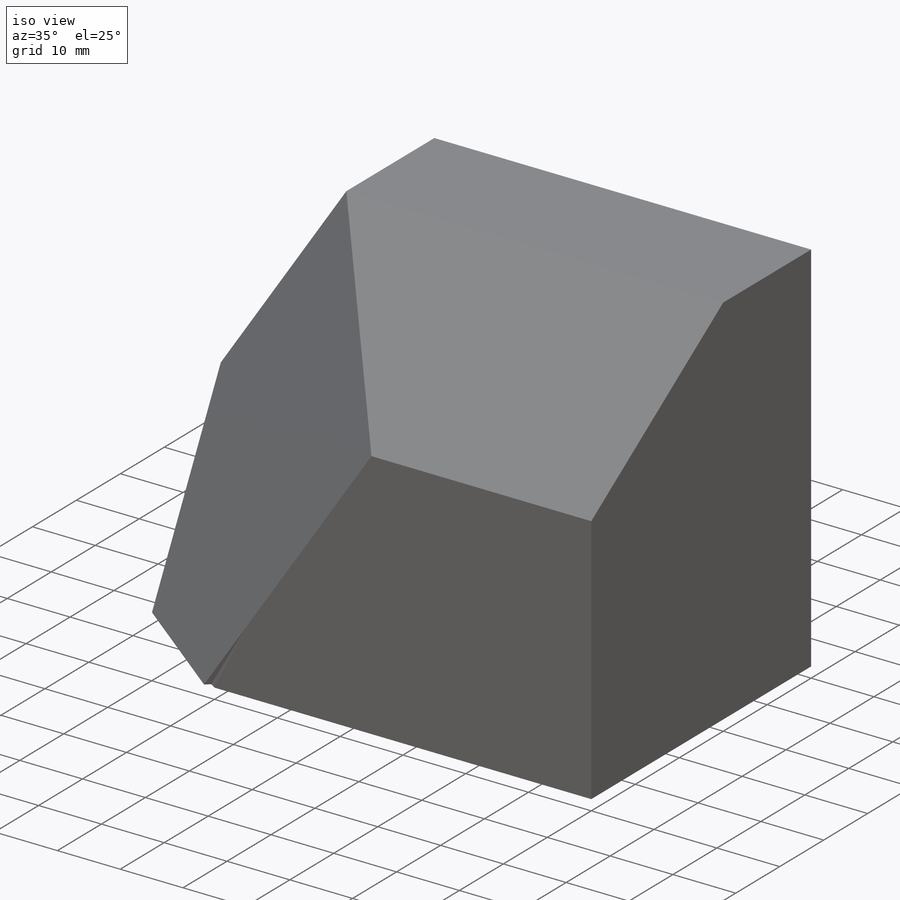
[diagram: iso view]
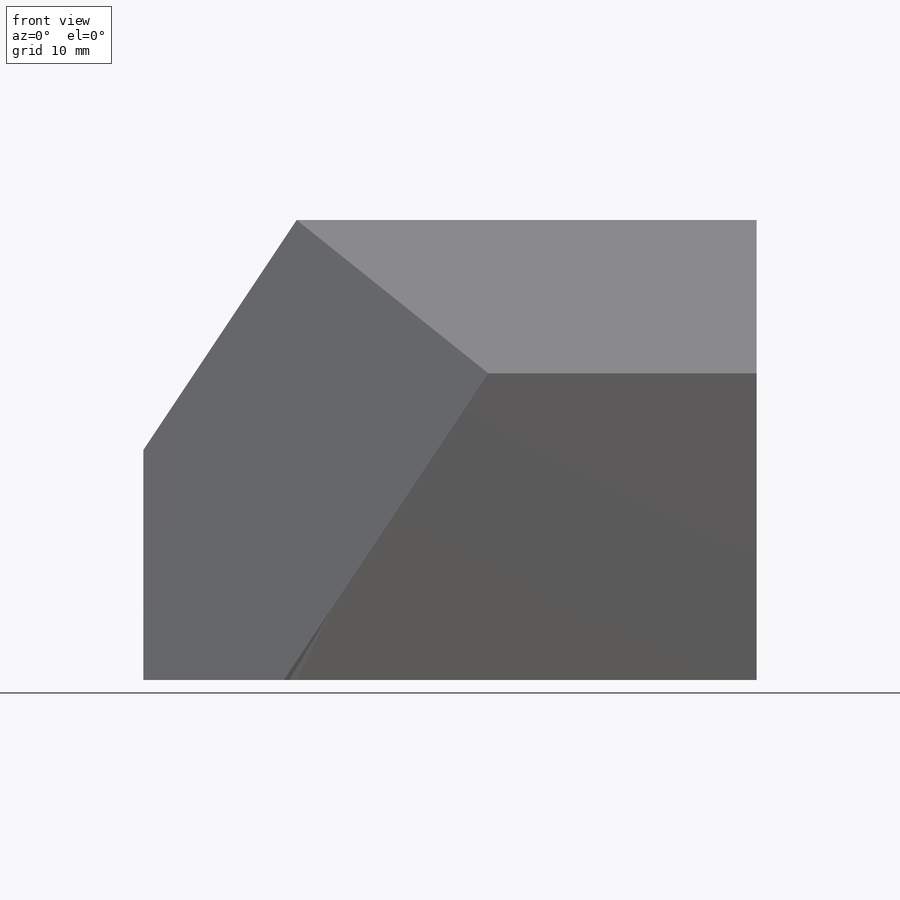
[diagram: front view]
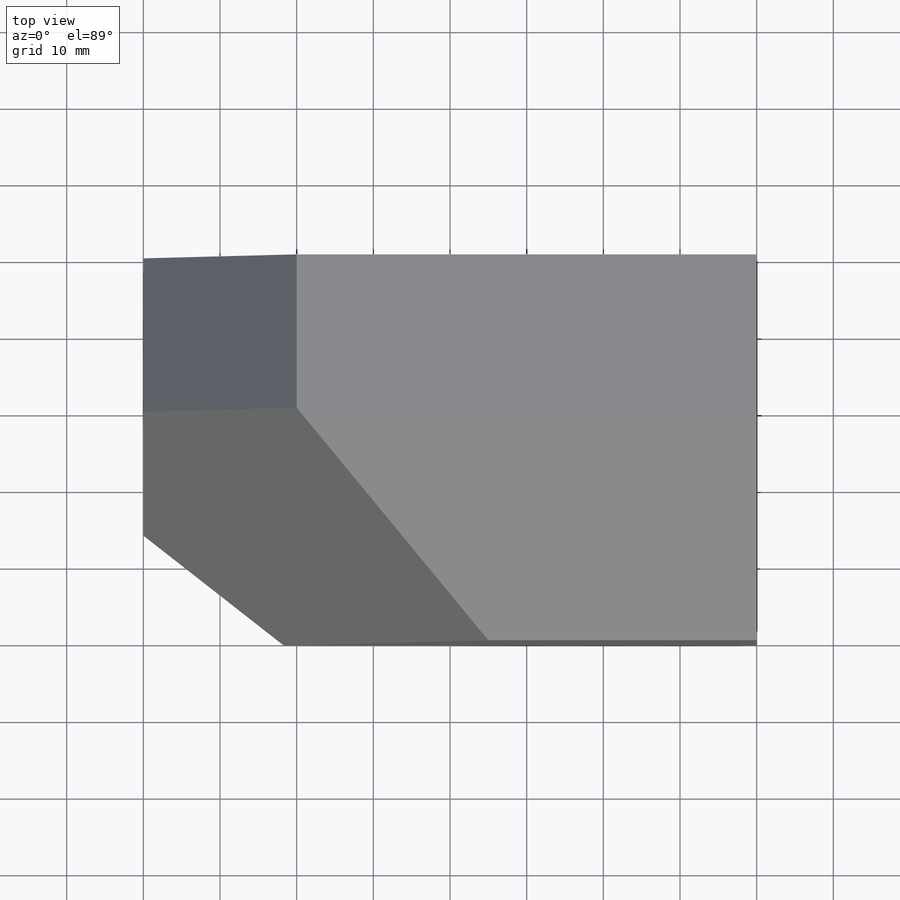
[diagram: top view]
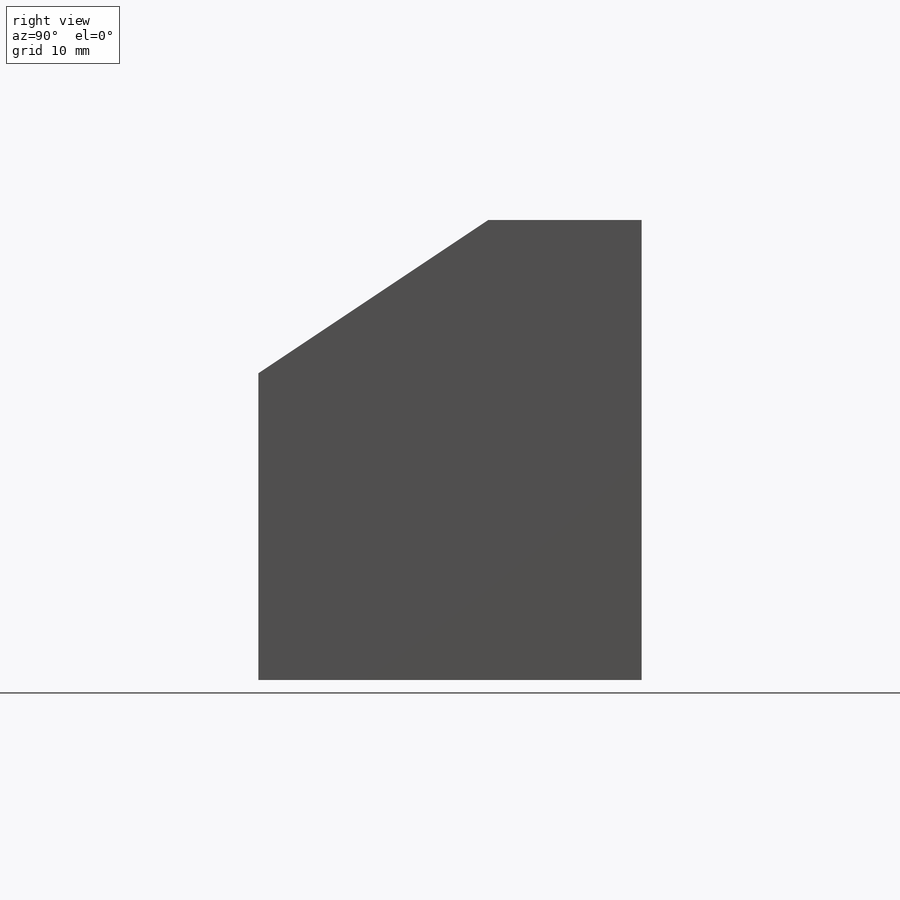
[diagram: right view]
SOLIDWORKS PART (.sldprt)
format: sldprt  version: not decoded by parser v0  size: 342,016 bytes
history: native  units: mm
features: sketch x23, cut_extrude x15, plane x4, extrude x2, material x1 (+13 scaffold rows collapsed)
feature tree (58):
  scaffold x13  (default folders/planes/origin — collapsed)
  material  "Material <not specified>"
  sketch  "Sketch1"  dims[D1=80.0mm D2=60.0mm]
  extrude  "Boss-Extrude1"  Depth=50mm
  sketch  "Sketch2"  dims[D1=20.0mm D2=30.0mm]
  cut_extrude  "Cut-Extrude1"  Depth=50mm
  sketch  "Sketch3"  dims[D1=20.0mm D2=20.0mm]
  cut_extrude  "Cut-Extrude2"  Depth=124mm
  sketch  "Sketch4"  dims[D1=20.0mm D2=40.0mm]
  sketch  "Sketch5"
  plane  "Plane1"
  sketch  "Sketch6"
  cut_extrude  "Cut-Extrude3"  Depth=124mm
  sketch  "Sketch7"
  cut_extrude  "Cut-Extrude4"  Depth=124mm
  sketch  "Sketch8"
  cut_extrude  "Cut-Extrude5"  Depth=124mm
  sketch  "Sketch9"
  cut_extrude  "Cut-Extrude6"  Depth=124mm
  sketch  "Sketch10"
  cut_extrude  "Cut-Extrude7"  Depth=124mm
  sketch  "Sketch11"
  cut_extrude  "Cut-Extrude8"  Depth=124mm
  sketch  "Sketch12"
  cut_extrude  "Cut-Extrude9"  Depth=124mm
  sketch  "Sketch14"  dims[D1=10.0mm]
  plane  "Plane2"
  sketch  "Sketch15"
  cut_extrude  "Cut-Extrude10"  Depth=124mm
  sketch  "Sketch16"
  cut_extrude  "Cut-Extrude11"  Depth=124mm
  sketch  "Sketch17"
  cut_extrude  "Cut-Extrude12"  Depth=124mm
  sketch  "Sketch18"  dims[D1=~36.055513mm]
  sketch  "Sketch21"  dims[D1=35.0mm]
  plane  "Plane4"
  sketch  "Sketch22"
  cut_extrude  "Cut-Extrude14"  Depth=124mm
  sketch  "Sketch23"
  cut_extrude  "Cut-Extrude15"  Depth=124mm
  sketch  "Sketch24"
  plane  "Plane5"
  sketch  "Sketch26"
  extrude  "Boss-Extrude2"  Depth=5mm
  sketch  "Sketch27"  dims[D1=0.0mm D2=80.0mm]
  cut_extrude  "Cut-Extrude20"  Depth=37mm
decode coverage: 25 of 40 modeling features carry decoded parameters
note: ~ marks probable driven/reference dimensions
note: suppression state not decoded; provenance and decode notes live in map.json
